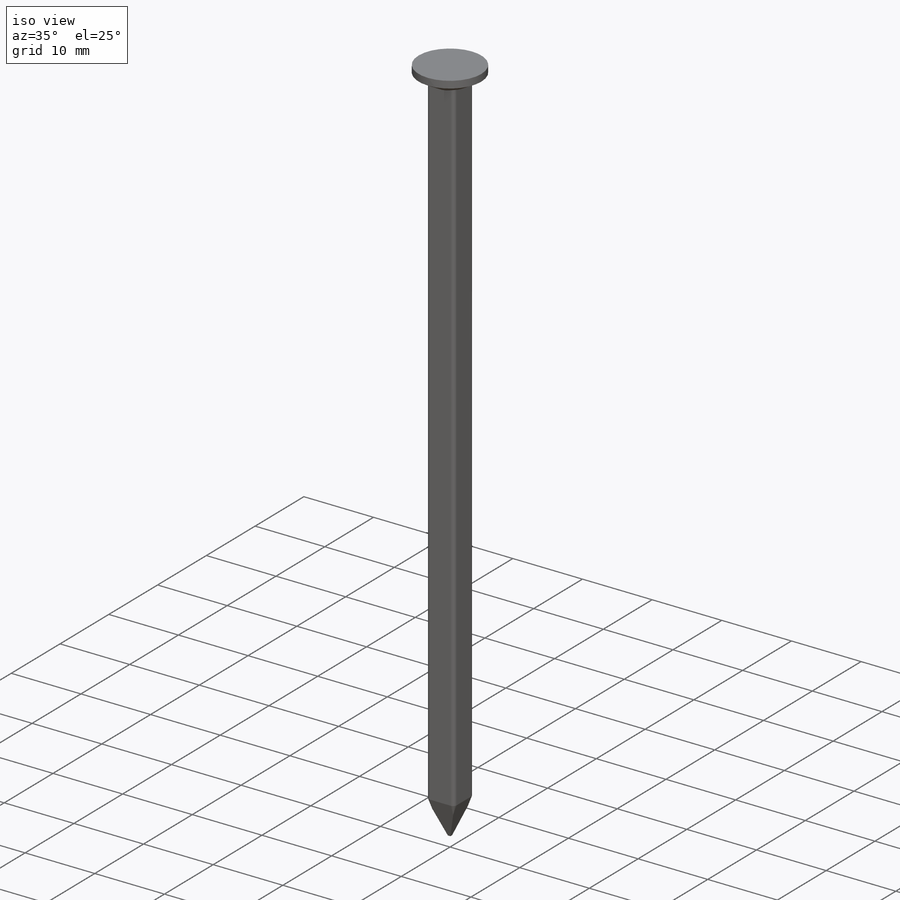
[diagram: iso view]
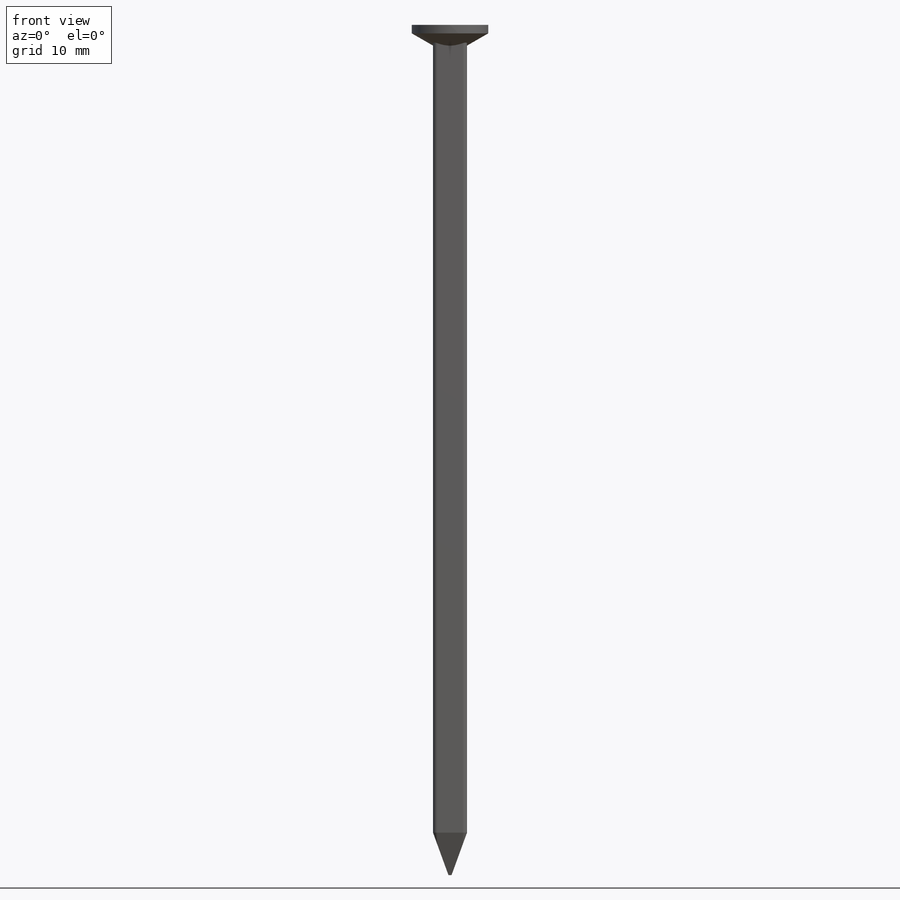
[diagram: front view]
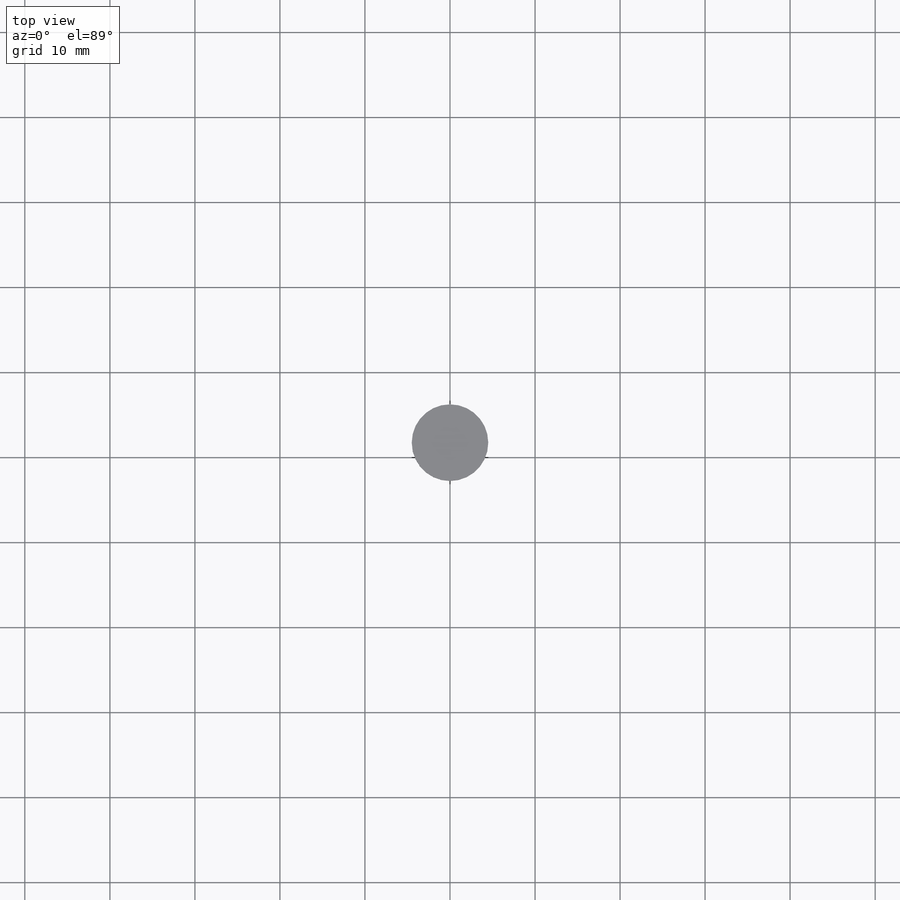
[diagram: top view]
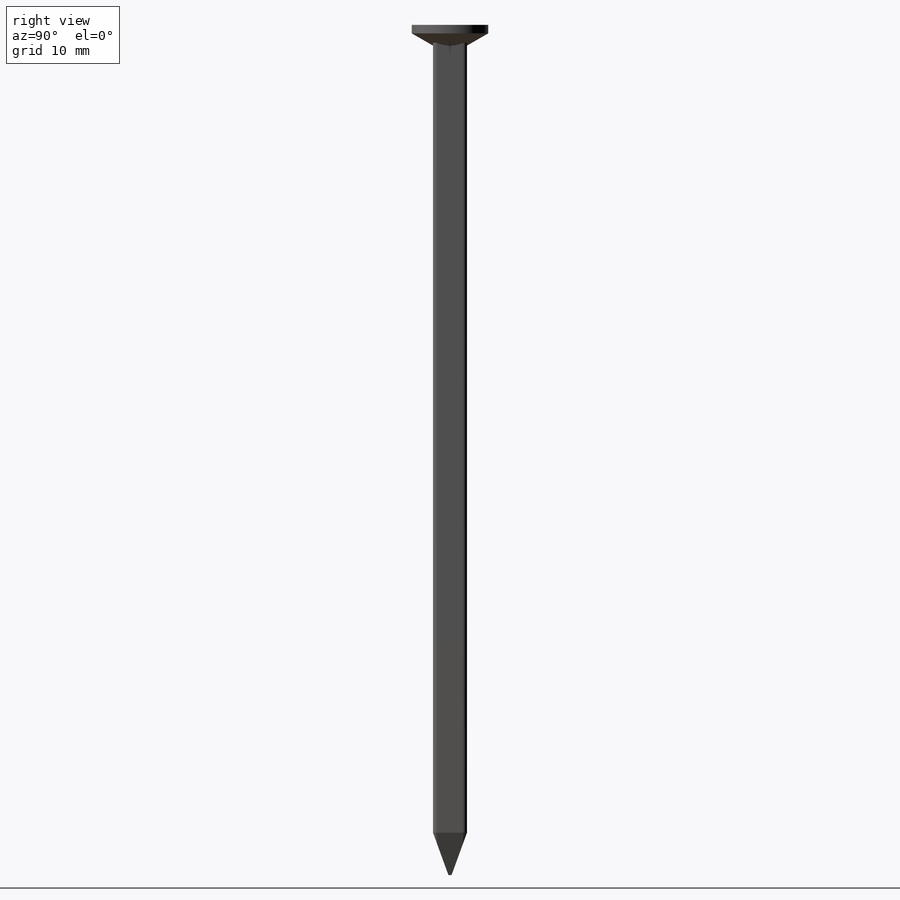
[diagram: right view]
SOLIDWORKS PART (.sldprt)
format: sldprt  version: not decoded by parser v0  size: 245,760 bytes
history: native  units: mm
features: sketch x5, extrude x4, material x1 (+12 scaffold rows collapsed)
feature tree (22):
  scaffold x12  (default folders/planes/origin — collapsed)
  material  "AISI 304"
  sketch  "Sketch1"  dims[D1=0.5mm D2=4.0mm]
  extrude  "Extrude1"  Depth=95mm
  sketch  "Sketch2"  dims[D1=9.0mm]
  extrude  "Extrude2"  Depth=1mm
  sketch  "Sketch3"  dims[D1=0.0mm]
  extrude  "Extrude3"  Depth=3mm
  sketch  "Sketch4"  dims[D1=0.0mm]
  extrude  "Extrude4"  Depth=5mm
  sketch  "Sketch5"
decode coverage: 8 of 9 modeling features carry decoded parameters
note: suppression state not decoded; provenance and decode notes live in map.json
